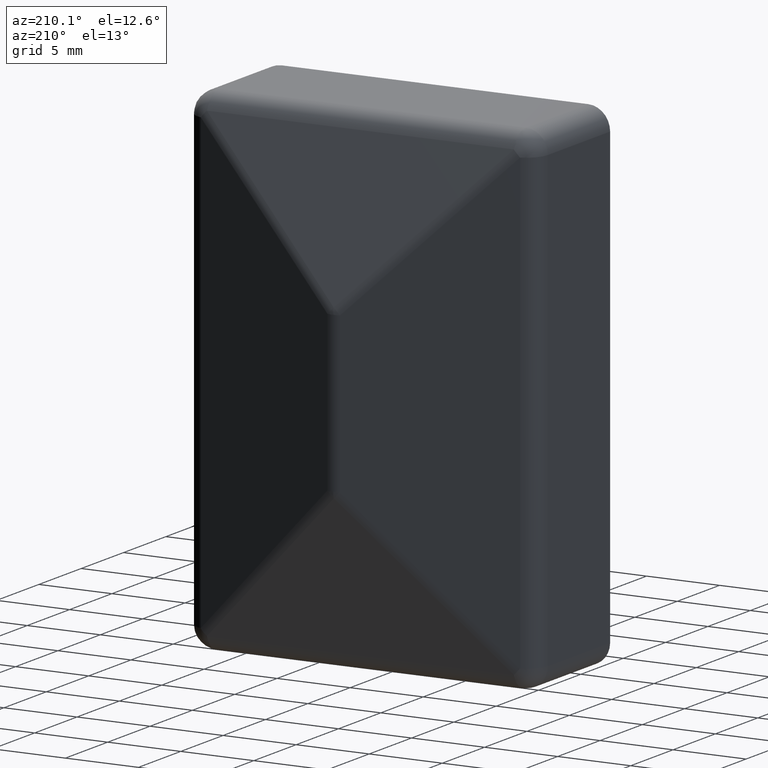
[diagram: clean part render]
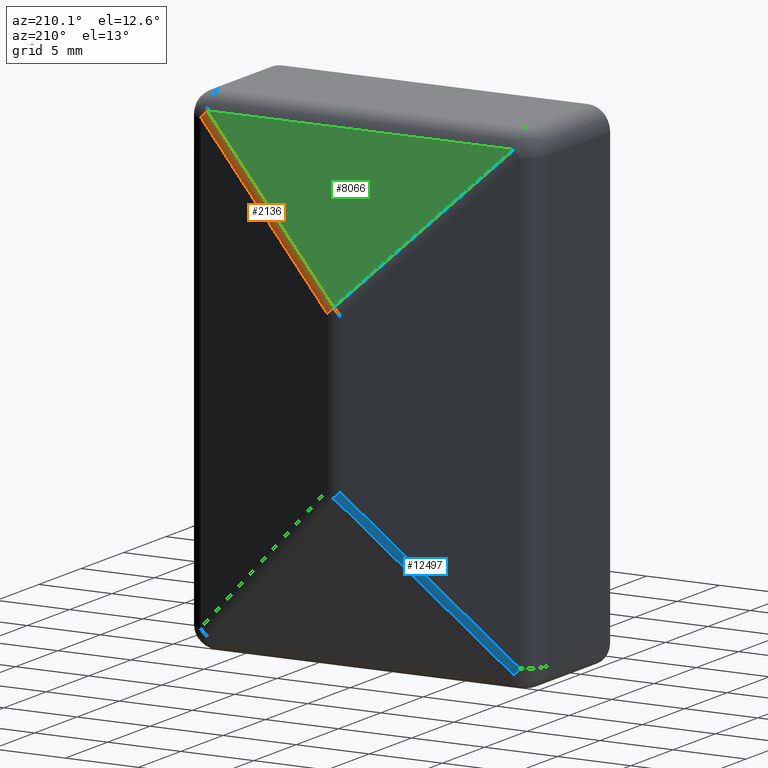
[diagram: same view with three faces highlighted in distinct colors, each labeled with its STEP entity id]
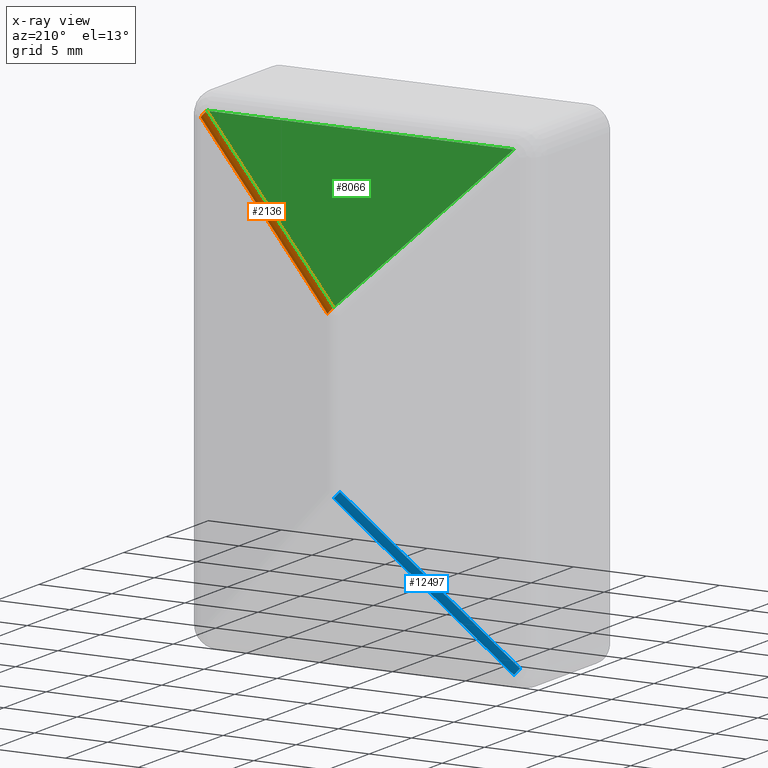
[diagram: x-ray of the same camera — body ghosted, the three highlighted faces saturated]
A machine part, auxiliary view with three faces highlighted in distinct colors.
The next image is the same camera in x-ray (body ghosted, the three faces saturated) — at least one of them is partly hidden behind the body in this view.
Their STEP definitions:

[orange] entity #2136 — the highlighted cylindrical surface (edge-blend (fillet) strip) has radius 1.5 mm, axis along (0.703, -0.2109, 0.6792).
#275 = ORIENTED_EDGE ( 'NONE', *, *, #5172, .F. ) ;
#452 = DIRECTION ( 'NONE',  ( 0.6948329253690732621, 0.000000000000000000, -0.7191711936827390739 ) ) ;
#504 = AXIS2_PLACEMENT_3D ( 'NONE', #9644, #5243, #7383 ) ;
#567 = LINE ( 'NONE', #762, #4843 ) ;
#762 = CARTESIAN_POINT ( 'NONE',  ( -5.930432836189265089, 13.71165976754255489, 0.07041998839150444278 ) ) ;
#1144 = EDGE_CURVE ( 'NONE', #6171, #5318, #567, .T. ) ;
#1696 = CARTESIAN_POINT ( 'NONE',  ( 10.49999999999999112, 8.782529916685790639, 15.94481236246338796 ) ) ;
#2136 = ADVANCED_FACE ( 'NONE', ( #9101 ), #10499, .T. ) ;
#2603 = DIRECTION ( 'NONE',  ( 0.7029955450421474517, -0.2108986635126436915, 0.6792046947566504622 ) ) ;
#3109 = VERTEX_POINT ( 'NONE', #6874 ) ;
#3331 = DIRECTION ( 'NONE',  ( -0.6948329253690760376, 0.000000000000000000, 0.7191711936827365204 ) ) ;
#3674 = DIRECTION ( 'NONE',  ( 0.7029955450421474517, -0.2108986635126437192, 0.6792046947566505732 ) ) ;
#3737 = VECTOR ( 'NONE', #2603, 1000.000000000000000 ) ;
#4284 = ORIENTED_EDGE ( 'NONE', *, *, #8174, .T. ) ;
#4843 = VECTOR ( 'NONE', #6059, 1000.000000000000000 ) ;
#5172 = EDGE_CURVE ( 'NONE', #3109, #9226, #11790, .T. ) ;
#5243 = DIRECTION ( 'NONE',  ( -0.7029955450421468965, 0.2108986635126438303, -0.6792046947566510173 ) ) ;
#5318 = VERTEX_POINT ( 'NONE', #9420 ) ;
#6059 = DIRECTION ( 'NONE',  ( -0.7029955450421474517, 0.2108986635126436360, -0.6792046947566504622 ) ) ;
#6171 = VERTEX_POINT ( 'NONE', #1696 ) ;
#6288 = CIRCLE ( 'NONE', #9067, 1.499999999999999778 ) ;
#6599 = DIRECTION ( 'NONE',  ( -0.7029955450421441210, 0.2108986635126459119, -0.6792046947566532378 ) ) ;
#6642 = CARTESIAN_POINT ( 'NONE',  ( 10.50000000000001954, 7.350000000000013856, 15.50000000000002842 ) ) ;
#6874 = CARTESIAN_POINT ( 'NONE',  ( 0.4310218283495175218, 11.93673942783172848, 5.355342120955786100 ) ) ;
#7383 = DIRECTION ( 'NONE',  ( -0.6948329253690733731, 0.000000000000000000, 0.7191711936827389628 ) ) ;
#8174 = EDGE_CURVE ( 'NONE', #6171, #9226, #6288, .T. ) ;
#8650 = EDGE_CURVE ( 'NONE', #5318, #3109, #13483, .T. ) ;
#9067 = AXIS2_PLACEMENT_3D ( 'NONE', #6642, #6599, #3331 ) ;
#9101 = FACE_OUTER_BOUND ( 'NONE', #13260, .T. ) ;
#9226 = VERTEX_POINT ( 'NONE', #11820 ) ;
#9420 = CARTESIAN_POINT ( 'NONE',  ( -1.734723475976807094E-15, 11.93252991668578034, 5.800154483419142970 ) ) ;
#9644 = CARTESIAN_POINT ( 'NONE',  ( -2.389531622669437168E-15, 10.50000000000000178, 5.355342120955780771 ) ) ;
#10120 = ORIENTED_EDGE ( 'NONE', *, *, #8650, .F. ) ;
#10275 = CARTESIAN_POINT ( 'NONE',  ( -10.67418124154871784, 13.70225437246460842, -4.957602339465509544 ) ) ;
#10499 = CYLINDRICAL_SURFACE ( 'NONE', #12018, 1.500000000000000666 ) ;
#11486 = CARTESIAN_POINT ( 'NONE',  ( -10.24315941319920142, 15.13899380029633690, -4.957602339465505992 ) ) ;
#11790 = LINE ( 'NONE', #11486, #3737 ) ;
#11820 = CARTESIAN_POINT ( 'NONE',  ( 10.93102182834953950, 8.786739427831729898, 15.50000000000006217 ) ) ;
#12018 = AXIS2_PLACEMENT_3D ( 'NONE', #10275, #3674, #452 ) ;
#12609 = ORIENTED_EDGE ( 'NONE', *, *, #1144, .F. ) ;
#13260 = EDGE_LOOP ( 'NONE', ( #4284, #275, #10120, #12609 ) ) ;
#13483 = CIRCLE ( 'NONE', #504, 1.499999999999999778 ) ;

[blue] entity #12497 — the highlighted cylindrical surface (edge-blend (fillet) strip) has radius 1.5 mm, axis along (-0.703, -0.2109, -0.6792).
#549 = DIRECTION ( 'NONE',  ( 0.7029955450421472296, 0.2108986635126436915, 0.6792046947566506843 ) ) ;
#558 = ORIENTED_EDGE ( 'NONE', *, *, #5467, .T. ) ;
#582 = VERTEX_POINT ( 'NONE', #4964 ) ;
#731 = ORIENTED_EDGE ( 'NONE', *, *, #12528, .F. ) ;
#851 = CIRCLE ( 'NONE', #11976, 1.499999999999999778 ) ;
#959 = CARTESIAN_POINT ( 'NONE',  ( -0.4310218283495158564, 11.93673942783172848, -5.355342120955786989 ) ) ;
#1124 = ORIENTED_EDGE ( 'NONE', *, *, #4286, .F. ) ;
#1488 = CARTESIAN_POINT ( 'NONE',  ( -11.21621681187841268, 7.135134956436484543, -16.19197852606921373 ) ) ;
#2223 = CARTESIAN_POINT ( 'NONE',  ( 5.049751939664416312E-15, 10.50000000000000000, -5.355342120955783436 ) ) ;
#2600 = AXIS2_PLACEMENT_3D ( 'NONE', #10042, #6763, #3412 ) ;
#3274 = CARTESIAN_POINT ( 'NONE',  ( -10.93102182834950042, 8.786739427831740556, -15.50000000000002842 ) ) ;
#3412 = DIRECTION ( 'NONE',  ( 0.6948329253690730400, 0.000000000000000000, -0.7191711936827392959 ) ) ;
#4286 = EDGE_CURVE ( 'NONE', #582, #13788, #851, .T. ) ;
#4375 = CARTESIAN_POINT ( 'NONE',  ( -10.49999999999998401, 8.782529916685790639, -15.94481236246338796 ) ) ;
#4964 = CARTESIAN_POINT ( 'NONE',  ( 5.204170427930421283E-15, 11.93252991668578034, -5.800154483419142970 ) ) ;
#5102 = CYLINDRICAL_SURFACE ( 'NONE', #13323, 1.499999999999999778 ) ;
#5467 = EDGE_CURVE ( 'NONE', #5992, #11258, #12659, .T. ) ;
#5992 = VERTEX_POINT ( 'NONE', #4375 ) ;
#6613 = ORIENTED_EDGE ( 'NONE', *, *, #12863, .F. ) ;
#6732 = DIRECTION ( 'NONE',  ( 0.6948329253690728180, 0.000000000000000000, -0.7191711936827395180 ) ) ;
#6763 = DIRECTION ( 'NONE',  ( 0.7029955450421473406, 0.2108986635126441633, 0.6792046947566505732 ) ) ;
#7115 = DIRECTION ( 'NONE',  ( -0.7029955450421473406, -0.2108986635126437192, -0.6792046947566505732 ) ) ;
#7130 = CARTESIAN_POINT ( 'NONE',  ( -11.24130410452364792, 8.560138685328693597, -16.66102917434184860 ) ) ;
#8335 = VECTOR ( 'NONE', #549, 1000.000000000000114 ) ;
#8520 = LINE ( 'NONE', #7130, #8335 ) ;
#9981 = VECTOR ( 'NONE', #7115, 1000.000000000000114 ) ;
#10042 = CARTESIAN_POINT ( 'NONE',  ( -10.49999999999998401, 7.349999999999986322, -15.50000000000001954 ) ) ;
#10158 = EDGE_LOOP ( 'NONE', ( #558, #6613, #1124, #731 ) ) ;
#10419 = DIRECTION ( 'NONE',  ( -0.7029955450421473406, -0.2108986635126437470, -0.6792046947566505732 ) ) ;
#10963 = DIRECTION ( 'NONE',  ( 0.7029955450421475627, 0.2108986635126437192, 0.6792046947566504622 ) ) ;
#11144 = CARTESIAN_POINT ( 'NONE',  ( -11.64723864022793087, 8.571874384268211244, -16.19197852606921373 ) ) ;
#11258 = VERTEX_POINT ( 'NONE', #3274 ) ;
#11357 = DIRECTION ( 'NONE',  ( -0.6948329253690724849, 0.000000000000000000, 0.7191711936827399620 ) ) ;
#11976 = AXIS2_PLACEMENT_3D ( 'NONE', #2223, #10963, #6732 ) ;
#12497 = ADVANCED_FACE ( 'NONE', ( #13478 ), #5102, .T. ) ;
#12528 = EDGE_CURVE ( 'NONE', #5992, #582, #8520, .T. ) ;
#12659 = CIRCLE ( 'NONE', #2600, 1.500000000000001110 ) ;
#12863 = EDGE_CURVE ( 'NONE', #13788, #11258, #12889, .T. ) ;
#12889 = LINE ( 'NONE', #11144, #9981 ) ;
#13323 = AXIS2_PLACEMENT_3D ( 'NONE', #1488, #10419, #11357 ) ;
#13478 = FACE_OUTER_BOUND ( 'NONE', #10158, .T. ) ;
#13788 = VERTEX_POINT ( 'NONE', #959 ) ;

[green] entity #8066 — the highlighted planar face has unit normal (0, -0.955, -0.2965).
#199 = VECTOR ( 'NONE', #10310, 1000.000000000000114 ) ;
#324 = CARTESIAN_POINT ( 'NONE',  ( -10.49999999999998934, 8.782529916685790639, 15.94481236246338796 ) ) ;
#567 = LINE ( 'NONE', #762, #4843 ) ;
#762 = CARTESIAN_POINT ( 'NONE',  ( -5.930432836189265089, 13.71165976754255489, 0.07041998839150444278 ) ) ;
#874 = CARTESIAN_POINT ( 'NONE',  ( -11.99999999999998934, 11.93252991668578034, 5.800154483419142970 ) ) ;
#1144 = EDGE_CURVE ( 'NONE', #6171, #5318, #567, .T. ) ;
#1639 = ORIENTED_EDGE ( 'NONE', *, *, #1144, .T. ) ;
#1692 = ORIENTED_EDGE ( 'NONE', *, *, #13144, .T. ) ;
#1696 = CARTESIAN_POINT ( 'NONE',  ( 10.49999999999999112, 8.782529916685790639, 15.94481236246338796 ) ) ;
#2019 = EDGE_CURVE ( 'NONE', #5318, #13138, #14061, .T. ) ;
#2083 = DIRECTION ( 'NONE',  ( 0.000000000000000000, 0.2965415749755719865, -0.9550199444571862983 ) ) ;
#4843 = VECTOR ( 'NONE', #6059, 1000.000000000000000 ) ;
#5025 = ORIENTED_EDGE ( 'NONE', *, *, #2019, .T. ) ;
#5318 = VERTEX_POINT ( 'NONE', #9420 ) ;
#5878 = CARTESIAN_POINT ( 'NONE',  ( -5.930432836189265089, 10.15340006582900578, 11.52988897844678107 ) ) ;
#6059 = DIRECTION ( 'NONE',  ( -0.7029955450421474517, 0.2108986635126436360, -0.6792046947566504622 ) ) ;
#6171 = VERTEX_POINT ( 'NONE', #1696 ) ;
#6374 = LINE ( 'NONE', #6809, #7394 ) ;
#6465 = DIRECTION ( 'NONE',  ( 0.000000000000000000, -0.9550199444571862983, -0.2965415749755719865 ) ) ;
#6809 = CARTESIAN_POINT ( 'NONE',  ( -11.99999999999998934, 8.782529916685790639, 15.94481236246338796 ) ) ;
#7394 = VECTOR ( 'NONE', #8977, 1000.000000000000000 ) ;
#8066 = ADVANCED_FACE ( 'NONE', ( #11604 ), #9731, .F. ) ;
#8977 = DIRECTION ( 'NONE',  ( 1.000000000000000000, -0.000000000000000000, -0.000000000000000000 ) ) ;
#9420 = CARTESIAN_POINT ( 'NONE',  ( -1.734723475976807094E-15, 11.93252991668578034, 5.800154483419142970 ) ) ;
#9731 = PLANE ( 'NONE',  #13584 ) ;
#10310 = DIRECTION ( 'NONE',  ( -0.7029955450421472296, -0.2108986635126436915, 0.6792046947566506843 ) ) ;
#10321 = EDGE_LOOP ( 'NONE', ( #1639, #5025, #1692 ) ) ;
#11604 = FACE_OUTER_BOUND ( 'NONE', #10321, .T. ) ;
#13138 = VERTEX_POINT ( 'NONE', #324 ) ;
#13144 = EDGE_CURVE ( 'NONE', #13138, #6171, #6374, .T. ) ;
#13584 = AXIS2_PLACEMENT_3D ( 'NONE', #874, #6465, #2083 ) ;
#14061 = LINE ( 'NONE', #5878, #199 ) ;